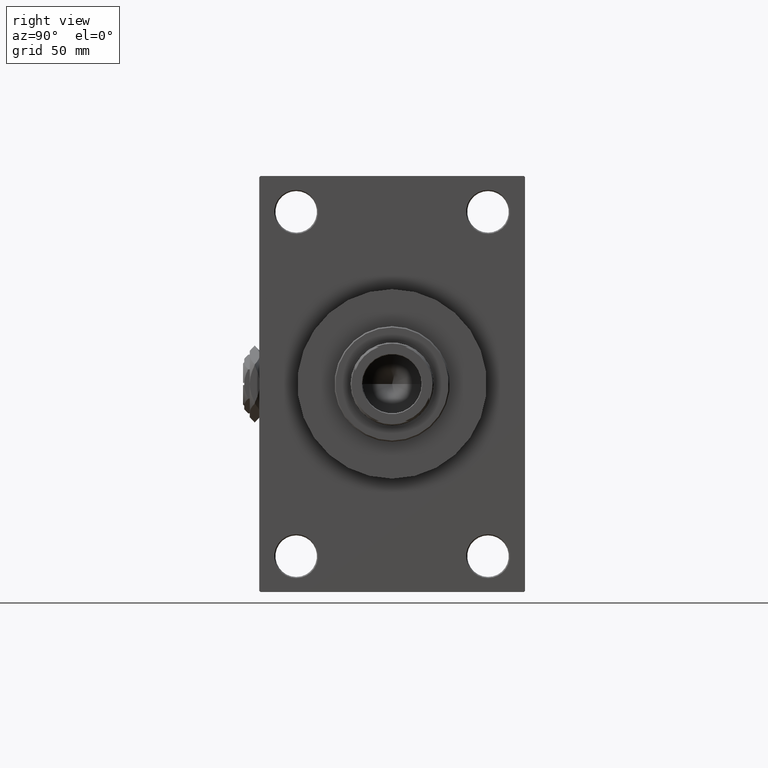
[diagram: clean part render]
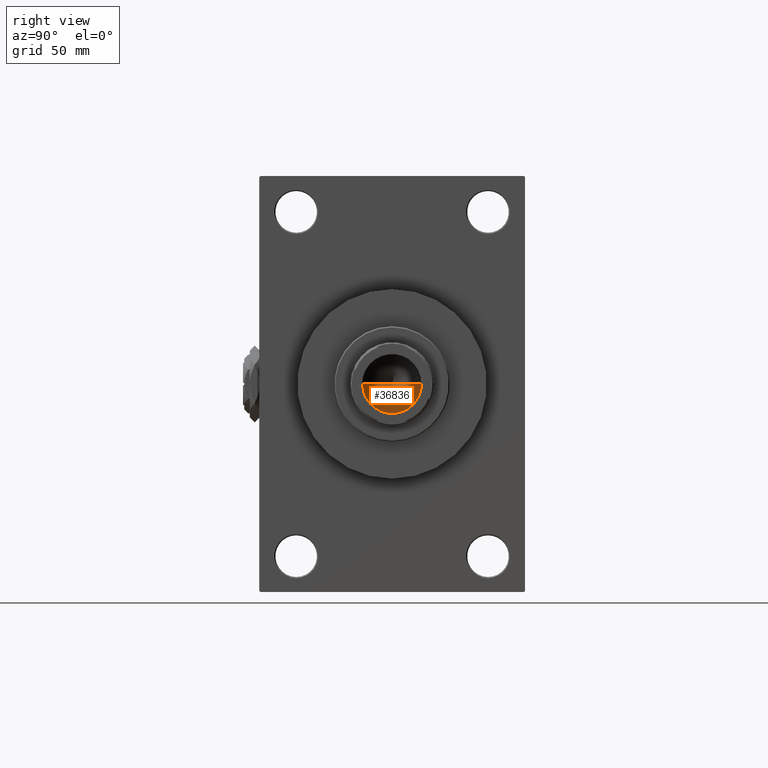
[diagram: same view with one face highlighted and labeled with its STEP entity id]
A machine part, right view. The second image highlights one B-rep face of the part: STEP entity #36836.
In plain terms, the highlighted conical surface has half-angle 59 deg.
Its self-contained STEP definition (entity closure, byte-faithful):
#314 = CARTESIAN_POINT ( 'NONE',  ( -12.74999999999998934, 1.561424668912873928E-15, 121.0000000000000142 ) ) ;
#3652 = CARTESIAN_POINT ( 'NONE',  ( 0.000000000000000000, 0.000000000000000000, 121.0000000000000142 ) ) ;
#4000 = VERTEX_POINT ( 'NONE', #9372 ) ;
#6371 = DIRECTION ( 'NONE',  ( 1.000000000000000000, 0.000000000000000000, 0.000000000000000000 ) ) ;
#6789 = ORIENTED_EDGE ( 'NONE', *, *, #7439, .T. ) ;
#6871 = VERTEX_POINT ( 'NONE', #28024 ) ;
#7439 = EDGE_CURVE ( 'NONE', #6871, #32826, #45369, .T. ) ;
#8290 = EDGE_LOOP ( 'NONE', ( #33971, #31881, #6789 ) ) ;
#9145 = DIRECTION ( 'NONE',  ( -0.000000000000000000, -0.000000000000000000, 1.000000000000000000 ) ) ;
#9372 = CARTESIAN_POINT ( 'NONE',  ( -1.410643066818227497E-14, 0.000000000000000000, 113.3390271073986071 ) ) ;
#10966 = CONICAL_SURFACE ( 'NONE', #17369, 12.74999999999998934, 1.029744258676653423 ) ;
#16552 = VECTOR ( 'NONE', #29506, 1000.000000000000000 ) ;
#17369 = AXIS2_PLACEMENT_3D ( 'NONE', #19496, #9145, #6371 ) ;
#19496 = CARTESIAN_POINT ( 'NONE',  ( 0.000000000000000000, 0.000000000000000000, 121.0000000000000142 ) ) ;
#20992 = LINE ( 'NONE', #28302, #40631 ) ;
#25021 = DIRECTION ( 'NONE',  ( 0.8571673007021117785, 0.000000000000000000, 0.5150380749100550437 ) ) ;
#28024 = CARTESIAN_POINT ( 'NONE',  ( 12.74999999999998934, 0.000000000000000000, 121.0000000000000142 ) ) ;
#28302 = CARTESIAN_POINT ( 'NONE',  ( 12.74999999999998934, 0.000000000000000000, 121.0000000000000142 ) ) ;
#29506 = DIRECTION ( 'NONE',  ( -0.8571673007021117785, 1.049727191138617956E-16, 0.5150380749100550437 ) ) ;
#31881 = ORIENTED_EDGE ( 'NONE', *, *, #39151, .T. ) ;
#32826 = VERTEX_POINT ( 'NONE', #314 ) ;
#33971 = ORIENTED_EDGE ( 'NONE', *, *, #35120, .F. ) ;
#34618 = DIRECTION ( 'NONE',  ( -0.000000000000000000, -0.000000000000000000, 1.000000000000000000 ) ) ;
#35120 = EDGE_CURVE ( 'NONE', #4000, #32826, #45097, .T. ) ;
#36836 = ADVANCED_FACE ( 'NONE', ( #43626 ), #10966, .F. ) ;
#39151 = EDGE_CURVE ( 'NONE', #4000, #6871, #20992, .T. ) ;
#40631 = VECTOR ( 'NONE', #25021, 1000.000000000000000 ) ;
#43626 = FACE_OUTER_BOUND ( 'NONE', #8290, .T. ) ;
#44844 = CARTESIAN_POINT ( 'NONE',  ( -12.74999999999998934, 1.561424668912873928E-15, 121.0000000000000142 ) ) ;
#45097 = LINE ( 'NONE', #44844, #16552 ) ;
#45369 = CIRCLE ( 'NONE', #46159, 12.74999999999998934 ) ;
#45674 = DIRECTION ( 'NONE',  ( 1.000000000000000000, 0.000000000000000000, 0.000000000000000000 ) ) ;
#46159 = AXIS2_PLACEMENT_3D ( 'NONE', #3652, #34618, #45674 ) ;